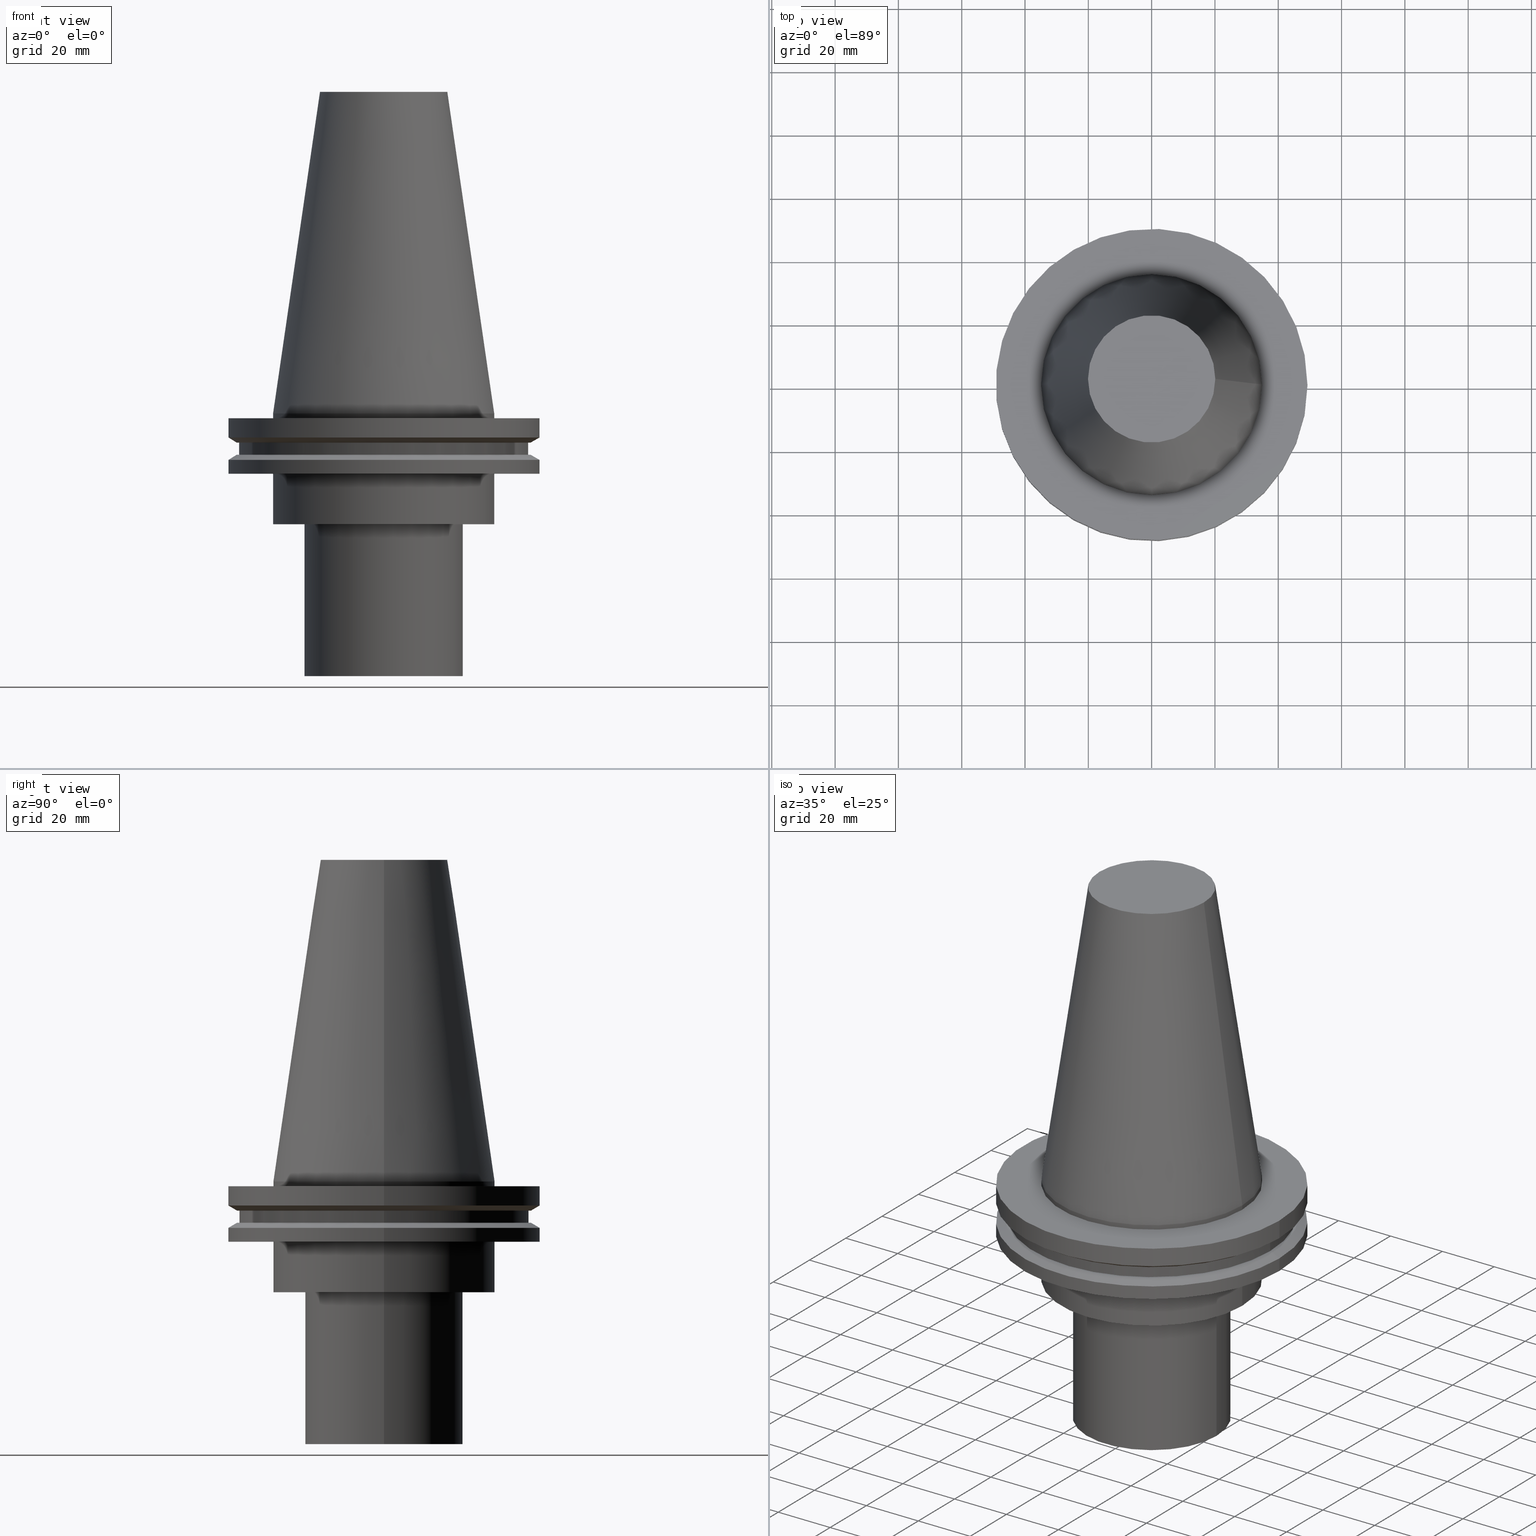
[diagram: canonical four-view strip — front | top / right | iso, engineering-drawing reading convention]
A machine part, canonical four-view strip (front | top / right | iso — engineering-drawing reading convention). The complete STEP part file that produces these views, byte-faithful:
ISO-10303-21;
HEADER;
FILE_DESCRIPTION (( 'STEP AP203' ),
    '1' );
FILE_NAME ('11.326.652.stp',
    '2022-03-09T14:51:39',
    ( '' ),
    ( '' ),
    'SwSTEP 2.0',
    'SolidWorks 2021',
    '' );
FILE_SCHEMA (( 'CONFIG_CONTROL_DESIGN' ));
ENDSEC;

DATA;
#1 = ORIENTED_EDGE ( 'NONE', *, *, #267, .F. ) ;
#2 = FACE_OUTER_BOUND ( 'NONE', #100, .T. ) ;
#3 = ORIENTED_EDGE ( 'NONE', *, *, #282, .T. ) ;
#4 =( LENGTH_UNIT ( ) NAMED_UNIT ( * ) SI_UNIT ( .MILLI., .METRE. ) );
#5 = FACE_OUTER_BOUND ( 'NONE', #336, .T. ) ;
#6 = AXIS2_PLACEMENT_3D ( 'NONE', #228, #347, #271 ) ;
#7 = ADVANCED_BREP_SHAPE_REPRESENTATION ( '11.326.652', ( #21, #395 ), #27 ) ;
#8 = EDGE_CURVE ( 'NONE', #365, #365, #269, .T. ) ;
#9 = CARTESIAN_POINT ( 'NONE',  ( 0.000000000000000000, 34.92499999999999716, -35.00000000000000000 ) ) ;
#10 = CARTESIAN_POINT ( 'NONE',  ( 0.000000000000000000, 0.000000000000000000, -82.99999999999995737 ) ) ;
#11 = APPLICATION_PROTOCOL_DEFINITION ( 'international standard', 'config_control_design', 1994, #262 ) ;
#12 = DATE_AND_TIME ( #283, #355 ) ;
#13 = AXIS2_PLACEMENT_3D ( 'NONE', #212, #338, #280 ) ;
#14 = DIRECTION ( 'NONE',  ( 0.000000000000000000, 0.000000000000000000, -1.000000000000000000 ) ) ;
#15 = APPROVAL_ROLE ( '' ) ;
#16 = CARTESIAN_POINT ( 'NONE',  ( 0.000000000000000000, 49.21499999999999631, -1.499999999999992895 ) ) ;
#17 = APPROVAL_DATE_TIME ( #127, #211 ) ;
#18 = AXIS2_PLACEMENT_3D ( 'NONE', #323, #24, #356 ) ;
#19 = EDGE_CURVE ( 'NONE', #390, #390, #351, .T. ) ;
#20 = PERSON_AND_ORGANIZATION ( #385, #217 ) ;
#21 = MANIFOLD_SOLID_BREP ( 'CKB', #214 ) ;
#22 = COORDINATED_UNIVERSAL_TIME_OFFSET ( 6, 0, .BEHIND. ) ;
#23 = ADVANCED_FACE ( 'NONE', ( #243, #178 ), #364, .T. ) ;
#24 = DIRECTION ( 'NONE',  ( -0.000000000000000000, -0.000000000000000000, 1.000000000000000000 ) ) ;
#25 = EDGE_LOOP ( 'NONE', ( #142 ) ) ;
#26 = ORIENTED_EDGE ( 'NONE', *, *, #150, .F. ) ;
#27 =( GEOMETRIC_REPRESENTATION_CONTEXT ( 3 ) GLOBAL_UNCERTAINTY_ASSIGNED_CONTEXT ( ( #329 ) ) GLOBAL_UNIT_ASSIGNED_CONTEXT ( ( #4, #370, #89 ) ) REPRESENTATION_CONTEXT ( 'NONE', 'WORKASPACE' ) );
#28 = FACE_OUTER_BOUND ( 'NONE', #55, .T. ) ;
#29 = EDGE_LOOP ( 'NONE', ( #240 ) ) ;
#30 = ADVANCED_FACE ( 'NONE', ( #108, #5 ), #268, .T. ) ;
#31 = CARTESIAN_POINT ( 'NONE',  ( 49.21499999999998920, 0.000000000000000000, -19.04999999999999716 ) ) ;
#32 = ORIENTED_EDGE ( 'NONE', *, *, #298, .T. ) ;
#33 = COORDINATED_UNIVERSAL_TIME_OFFSET ( 6, 0, .BEHIND. ) ;
#34 = CARTESIAN_POINT ( 'NONE',  ( 0.000000000000000000, 0.000000000000000000, 101.5999999999999801 ) ) ;
#35 = VERTEX_POINT ( 'NONE', #149 ) ;
#36 = CARTESIAN_POINT ( 'NONE',  ( 0.000000000000000000, 0.000000000000000000, 0.000000000000000000 ) ) ;
#37 = CARTESIAN_POINT ( 'NONE',  ( 45.64500000000000313, 0.000000000000000000, -13.05499999999999794 ) ) ;
#38 = DIRECTION ( 'NONE',  ( 1.000000000000000000, 0.000000000000000000, 0.000000000000000000 ) ) ;
#39 = EDGE_CURVE ( 'NONE', #47, #47, #231, .T. ) ;
#40 = VERTEX_POINT ( 'NONE', #37 ) ;
#41 = FACE_OUTER_BOUND ( 'NONE', #113, .T. ) ;
#42 = COORDINATED_UNIVERSAL_TIME_OFFSET ( 6, 0, .BEHIND. ) ;
#43 = PRODUCT_DEFINITION ( 'UNKNOWN', '', #293, #175 ) ;
#44 = AXIS2_PLACEMENT_3D ( 'NONE', #168, #106, #172 ) ;
#45 = FACE_OUTER_BOUND ( 'NONE', #244, .T. ) ;
#46 = FACE_OUTER_BOUND ( 'NONE', #57, .T. ) ;
#47 = VERTEX_POINT ( 'NONE', #166 ) ;
#48 = AXIS2_PLACEMENT_3D ( 'NONE', #145, #83, #328 ) ;
#49 = CC_DESIGN_APPROVAL ( #320, ( #43 ) ) ;
#50 = CARTESIAN_POINT ( 'NONE',  ( 0.000000000000000000, 46.43919780457007818, -9.204999999999998295 ) ) ;
#51 = DIRECTION ( 'NONE',  ( 1.000000000000000000, 0.000000000000000000, 0.000000000000000000 ) ) ;
#52 = EDGE_LOOP ( 'NONE', ( #26 ) ) ;
#53 = CYLINDRICAL_SURFACE ( 'NONE', #140, 45.64500000000000313 ) ;
#54 = EDGE_LOOP ( 'NONE', ( #359 ) ) ;
#55 = EDGE_LOOP ( 'NONE', ( #86 ) ) ;
#56 = MECHANICAL_CONTEXT ( 'NONE', #262, 'mechanical' ) ;
#57 = EDGE_LOOP ( 'NONE', ( #299 ) ) ;
#58 = DIRECTION ( 'NONE',  ( 0.000000000000000000, 0.000000000000000000, 1.000000000000000000 ) ) ;
#59 = DIRECTION ( 'NONE',  ( 0.000000000000000000, 0.000000000000000000, -1.000000000000000000 ) ) ;
#60 = CIRCLE ( 'NONE', #270, 49.21499999999999631 ) ;
#61 = FACE_OUTER_BOUND ( 'NONE', #236, .T. ) ;
#62 = EDGE_CURVE ( 'NONE', #40, #40, #122, .T. ) ;
#63 = DIRECTION ( 'NONE',  ( 1.000000000000000000, 0.000000000000000000, 0.000000000000000000 ) ) ;
#64 = CARTESIAN_POINT ( 'NONE',  ( 25.00000000000000000, 0.000000000000000000, -82.99999999999995737 ) ) ;
#65 = DIRECTION ( 'NONE',  ( -0.000000000000000000, -0.000000000000000000, 1.000000000000000000 ) ) ;
#66 = CIRCLE ( 'NONE', #223, 49.21499999999998920 ) ;
#67 = PERSON_AND_ORGANIZATION_ROLE ( 'classification_officer' ) ;
#68 = AXIS2_PLACEMENT_3D ( 'NONE', #319, #345, #63 ) ;
#69 = DIRECTION ( 'NONE',  ( -1.000000000000000000, 0.000000000000000000, -0.000000000000000000 ) ) ;
#70 = ADVANCED_FACE ( 'NONE', ( #153, #317 ), #340, .F. ) ;
#71 = CALENDAR_DATE ( 2022, 9, 3 ) ;
#72 = DIRECTION ( 'NONE',  ( -0.000000000000000000, -0.000000000000000000, 1.000000000000000000 ) ) ;
#73 = EDGE_LOOP ( 'NONE', ( #115 ) ) ;
#74 = AXIS2_PLACEMENT_3D ( 'NONE', #16, #59, #222 ) ;
#75 = CYLINDRICAL_SURFACE ( 'NONE', #78, 49.21499999999999631 ) ;
#76 = CARTESIAN_POINT ( 'NONE',  ( 49.21499999999998920, 0.000000000000000000, -14.65761014474876944 ) ) ;
#77 = PLANE ( 'NONE',  #276 ) ;
#78 = AXIS2_PLACEMENT_3D ( 'NONE', #230, #384, #291 ) ;
#79 = DIRECTION ( 'NONE',  ( 1.000000000000000000, 0.000000000000000000, 0.000000000000000000 ) ) ;
#80 = CARTESIAN_POINT ( 'NONE',  ( 0.000000000000000000, 0.000000000000000000, 0.000000000000000000 ) ) ;
#81 = CC_DESIGN_PERSON_AND_ORGANIZATION_ASSIGNMENT ( #160, #349, ( #293 ) ) ;
#82 = EDGE_LOOP ( 'NONE', ( #348 ) ) ;
#83 = DIRECTION ( 'NONE',  ( -0.000000000000000000, -0.000000000000000000, 1.000000000000000000 ) ) ;
#84 = ORIENTED_EDGE ( 'NONE', *, *, #19, .T. ) ;
#85 = DIRECTION ( 'NONE',  ( 0.000000000000000000, 0.000000000000000000, -1.000000000000000000 ) ) ;
#86 = ORIENTED_EDGE ( 'NONE', *, *, #226, .F. ) ;
#87 = VERTEX_POINT ( 'NONE', #64 ) ;
#88 = EDGE_LOOP ( 'NONE', ( #84 ) ) ;
#89 =( NAMED_UNIT ( * ) SI_UNIT ( $, .STERADIAN. ) SOLID_ANGLE_UNIT ( ) );
#90 = FACE_OUTER_BOUND ( 'NONE', #105, .T. ) ;
#91 = PERSON_AND_ORGANIZATION_ROLE ( 'design_owner' ) ;
#92 = FACE_OUTER_BOUND ( 'NONE', #331, .T. ) ;
#93 = CARTESIAN_POINT ( 'NONE',  ( 46.43919780457007818, 0.000000000000000000, -9.204999999999991189 ) ) ;
#94 = DIRECTION ( 'NONE',  ( -0.000000000000000000, -0.000000000000000000, 1.000000000000000000 ) ) ;
#95 = CC_DESIGN_DATE_AND_TIME_ASSIGNMENT ( #12, #123, ( #43 ) ) ;
#96 = CARTESIAN_POINT ( 'NONE',  ( 0.000000000000000000, 0.000000000000000000, 0.000000000000000000 ) ) ;
#97 = CARTESIAN_POINT ( 'NONE',  ( 0.000000000000000000, 0.000000000000000000, -14.65761014474876944 ) ) ;
#98 = AXIS2_PLACEMENT_3D ( 'NONE', #118, #184, #311 ) ;
#99 = DIRECTION ( 'NONE',  ( 1.000000000000000000, 0.000000000000000000, 0.000000000000000000 ) ) ;
#100 = EDGE_LOOP ( 'NONE', ( #204 ) ) ;
#101 = CYLINDRICAL_SURFACE ( 'NONE', #6, 34.92499999999999005 ) ;
#102 = EDGE_LOOP ( 'NONE', ( #294 ) ) ;
#103 = AXIS2_PLACEMENT_3D ( 'NONE', #273, #265, #51 ) ;
#104 = LOCAL_TIME ( 8, 51, 39.00000000000000000, #42 ) ;
#105 = EDGE_LOOP ( 'NONE', ( #308 ) ) ;
#106 = DIRECTION ( 'NONE',  ( -0.000000000000000000, -0.000000000000000000, 1.000000000000000000 ) ) ;
#107 = EDGE_LOOP ( 'NONE', ( #369 ) ) ;
#108 = FACE_OUTER_BOUND ( 'NONE', #171, .T. ) ;
#109 = EDGE_LOOP ( 'NONE', ( #233 ) ) ;
#110 = FACE_OUTER_BOUND ( 'NONE', #29, .T. ) ;
#111 = EDGE_LOOP ( 'NONE', ( #393 ) ) ;
#112 = DIRECTION ( 'NONE',  ( 1.000000000000000000, 0.000000000000000000, 0.000000000000000000 ) ) ;
#113 = EDGE_LOOP ( 'NONE', ( #237 ) ) ;
#114 = AXIS2_PLACEMENT_3D ( 'NONE', #207, #306, #275 ) ;
#115 = ORIENTED_EDGE ( 'NONE', *, *, #161, .T. ) ;
#116 = CARTESIAN_POINT ( 'NONE',  ( 34.92499999999999005, 0.000000000000000000, -1.499999999999987566 ) ) ;
#117 = DIRECTION ( 'NONE',  ( 1.000000000000000000, 0.000000000000000000, 0.000000000000000000 ) ) ;
#118 = CARTESIAN_POINT ( 'NONE',  ( 0.000000000000000000, 20.10819343178871321, 101.5999999999999943 ) ) ;
#119 = APPROVAL_STATUS ( 'not_yet_approved' ) ;
#120 = DIRECTION ( 'NONE',  ( 1.000000000000000000, 0.000000000000000000, 0.000000000000000000 ) ) ;
#121 = AXIS2_PLACEMENT_3D ( 'NONE', #144, #146, #79 ) ;
#122 = CIRCLE ( 'NONE', #68, 45.64500000000000313 ) ;
#123 = DATE_TIME_ROLE ( 'creation_date' ) ;
#124 = DIRECTION ( 'NONE',  ( -1.000000000000000000, 0.000000000000000000, 0.000000000000000000 ) ) ;
#125 = PERSON_AND_ORGANIZATION ( #385, #217 ) ;
#126 = PLANE ( 'NONE',  #98 ) ;
#127 = DATE_AND_TIME ( #71, #104 ) ;
#128 = CONICAL_SURFACE ( 'NONE', #238, 34.92499999999999005, 0.1448138465474119452 ) ;
#129 = DATE_TIME_ROLE ( 'classification_date' ) ;
#130 = DIRECTION ( 'NONE',  ( 1.000000000000000000, 0.000000000000000000, 0.000000000000000000 ) ) ;
#131 = APPROVAL_STATUS ( 'not_yet_approved' ) ;
#132 = ORIENTED_EDGE ( 'NONE', *, *, #39, .F. ) ;
#133 = ADVANCED_FACE ( 'NONE', ( #378 ), #126, .F. ) ;
#134 = EDGE_CURVE ( 'NONE', #343, #343, #353, .T. ) ;
#135 = CARTESIAN_POINT ( 'NONE',  ( 0.000000000000000000, 49.21499999999998920, -19.04999999999999716 ) ) ;
#136 = EDGE_LOOP ( 'NONE', ( #199 ) ) ;
#137 = CIRCLE ( 'NONE', #194, 34.92499999999999716 ) ;
#138 = FACE_BOUND ( 'NONE', #107, .T. ) ;
#139 = EDGE_LOOP ( 'NONE', ( #327 ) ) ;
#140 = AXIS2_PLACEMENT_3D ( 'NONE', #361, #239, #112 ) ;
#141 = LOCAL_TIME ( 8, 51, 39.00000000000000000, #22 ) ;
#142 = ORIENTED_EDGE ( 'NONE', *, *, #152, .F. ) ;
#143 = DIRECTION ( 'NONE',  ( 1.000000000000000000, 0.000000000000000000, 0.000000000000000000 ) ) ;
#144 = CARTESIAN_POINT ( 'NONE',  ( 0.000000000000000000, 0.000000000000000000, -9.204999999999991189 ) ) ;
#145 = CARTESIAN_POINT ( 'NONE',  ( 0.000000000000000000, 0.000000000000000000, -1.499999999999987566 ) ) ;
#146 = DIRECTION ( 'NONE',  ( -0.000000000000000000, -0.000000000000000000, 1.000000000000000000 ) ) ;
#147 = CARTESIAN_POINT ( 'NONE',  ( 34.92499999999999716, 0.000000000000000000, -19.04999999999999716 ) ) ;
#148 = FACE_BOUND ( 'NONE', #209, .T. ) ;
#149 = CARTESIAN_POINT ( 'NONE',  ( 20.10819343178871321, 0.000000000000000000, 101.5999999999999801 ) ) ;
#150 = EDGE_CURVE ( 'NONE', #35, #35, #297, .T. ) ;
#151 = PLANE ( 'NONE',  #259 ) ;
#152 = EDGE_CURVE ( 'NONE', #341, #341, #215, .T. ) ;
#153 = FACE_BOUND ( 'NONE', #54, .T. ) ;
#154 = COORDINATED_UNIVERSAL_TIME_OFFSET ( 6, 0, .BEHIND. ) ;
#155 = FACE_OUTER_BOUND ( 'NONE', #88, .T. ) ;
#156 = CIRCLE ( 'NONE', #196, 25.00000000000000000 ) ;
#157 = ADVANCED_FACE ( 'NONE', ( #148, #41 ), #159, .F. ) ;
#158 = APPROVAL_STATUS ( 'not_yet_approved' ) ;
#159 = PLANE ( 'NONE',  #74 ) ;
#160 = PERSON_AND_ORGANIZATION ( #385, #217 ) ;
#161 = EDGE_CURVE ( 'NONE', #335, #335, #137, .T. ) ;
#162 = PERSON_AND_ORGANIZATION ( #385, #217 ) ;
#163 = ADVANCED_FACE ( 'NONE', ( #371, #155 ), #360, .T. ) ;
#164 = PLANE ( 'NONE',  #367 ) ;
#165 = AXIS2_PLACEMENT_3D ( 'NONE', #96, #191, #278 ) ;
#166 = CARTESIAN_POINT ( 'NONE',  ( 46.43919780457007818, 0.000000000000000000, -13.05499999999999794 ) ) ;
#167 = LOCAL_TIME ( 8, 51, 39.00000000000000000, #33 ) ;
#168 = CARTESIAN_POINT ( 'NONE',  ( 0.000000000000000000, 0.000000000000000000, -9.204999999999991189 ) ) ;
#169 = CARTESIAN_POINT ( 'NONE',  ( 0.000000000000000000, 0.000000000000000000, 101.5999999999999943 ) ) ;
#170 = DIRECTION ( 'NONE',  ( -1.000000000000000000, 0.000000000000000000, 0.000000000000000000 ) ) ;
#171 = EDGE_LOOP ( 'NONE', ( #394 ) ) ;
#172 = DIRECTION ( 'NONE',  ( 1.000000000000000000, 0.000000000000000000, 0.000000000000000000 ) ) ;
#173 = AXIS2_PLACEMENT_3D ( 'NONE', #97, #14, #124 ) ;
#174 = CC_DESIGN_APPROVAL ( #260, ( #190 ) ) ;
#175 = DESIGN_CONTEXT ( 'detailed design', #255, 'design' ) ;
#176 = ADVANCED_FACE ( 'NONE', ( #216, #90 ), #380, .T. ) ;
#177 = ORIENTED_EDGE ( 'NONE', *, *, #134, .F. ) ;
#178 = FACE_OUTER_BOUND ( 'NONE', #362, .T. ) ;
#179 = ORIENTED_EDGE ( 'NONE', *, *, #296, .T. ) ;
#180 = DIRECTION ( 'NONE',  ( 1.000000000000000000, 0.000000000000000000, 0.000000000000000000 ) ) ;
#181 = CIRCLE ( 'NONE', #189, 25.00000000000000000 ) ;
#182 = DIRECTION ( 'NONE',  ( -0.000000000000000000, -0.000000000000000000, 1.000000000000000000 ) ) ;
#183 = PERSON_AND_ORGANIZATION_ROLE ( 'creator' ) ;
#184 = DIRECTION ( 'NONE',  ( 0.000000000000000000, 0.000000000000000000, -1.000000000000000000 ) ) ;
#185 = PERSON_AND_ORGANIZATION ( #385, #217 ) ;
#186 = DIRECTION ( 'NONE',  ( -0.000000000000000000, -0.000000000000000000, 1.000000000000000000 ) ) ;
#187 = VERTEX_POINT ( 'NONE', #274 ) ;
#188 = DIRECTION ( 'NONE',  ( 0.000000000000000000, -0.000000000000000000, 1.000000000000000000 ) ) ;
#189 = AXIS2_PLACEMENT_3D ( 'NONE', #235, #72, #130 ) ;
#190 = SECURITY_CLASSIFICATION ( '', '', #322 ) ;
#191 = DIRECTION ( 'NONE',  ( -0.000000000000000000, -0.000000000000000000, 1.000000000000000000 ) ) ;
#192 = DATE_AND_TIME ( #290, #198 ) ;
#193 = ADVANCED_FACE ( 'NONE', ( #287, #61 ), #151, .F. ) ;
#194 = AXIS2_PLACEMENT_3D ( 'NONE', #253, #94, #38 ) ;
#195 = APPROVAL_ROLE ( '' ) ;
#196 = AXIS2_PLACEMENT_3D ( 'NONE', #10, #251, #374 ) ;
#197 = FACE_OUTER_BOUND ( 'NONE', #25, .T. ) ;
#198 = LOCAL_TIME ( 8, 51, 39.00000000000000000, #227 ) ;
#199 = ORIENTED_EDGE ( 'NONE', *, *, #282, .F. ) ;
#200 = DIRECTION ( 'NONE',  ( -0.000000000000000000, -0.000000000000000000, 1.000000000000000000 ) ) ;
#201 = ORIENTED_EDGE ( 'NONE', *, *, #161, .F. ) ;
#202 = FACE_BOUND ( 'NONE', #301, .T. ) ;
#203 = ADVANCED_FACE ( 'NONE', ( #221 ), #249, .F. ) ;
#204 = ORIENTED_EDGE ( 'NONE', *, *, #62, .T. ) ;
#205 = CARTESIAN_POINT ( 'NONE',  ( 0.000000000000000000, 0.000000000000000000, -1.499999999999987566 ) ) ;
#206 = CIRCLE ( 'NONE', #18, 34.92499999999999716 ) ;
#207 = CARTESIAN_POINT ( 'NONE',  ( 0.000000000000000000, 0.000000000000000000, 101.5999999999999943 ) ) ;
#208 = VERTEX_POINT ( 'NONE', #116 ) ;
#209 = EDGE_LOOP ( 'NONE', ( #326 ) ) ;
#210 = EDGE_CURVE ( 'NONE', #87, #87, #156, .T. ) ;
#211 = APPROVAL ( #131, 'UNSPECIFIED' ) ;
#212 = CARTESIAN_POINT ( 'NONE',  ( 0.000000000000000000, 25.00000000000000000, -82.99999999999995737 ) ) ;
#213 = PERSON_AND_ORGANIZATION ( #385, #217 ) ;
#214 = CLOSED_SHELL ( 'NONE', ( #304, #133, #193, #23, #232, #30, #163, #70, #387, #315, #354, #220, #157, #289, #176, #203 ) ) ;
#215 = CIRCLE ( 'NONE', #285, 46.43919780457007818 ) ;
#216 = FACE_OUTER_BOUND ( 'NONE', #136, .T. ) ;
#217 = ORGANIZATION ( 'UNSPECIFIED', 'UNSPECIFIED', '' ) ;
#218 = CARTESIAN_POINT ( 'NONE',  ( 34.92499999999999716, 0.000000000000000000, -35.00000000000000000 ) ) ;
#219 = CARTESIAN_POINT ( 'NONE',  ( 0.000000000000000000, 0.000000000000000000, -13.05499999999999794 ) ) ;
#220 = ADVANCED_FACE ( 'NONE', ( #92, #352 ), #75, .T. ) ;
#221 = FACE_OUTER_BOUND ( 'NONE', #111, .T. ) ;
#222 = DIRECTION ( 'NONE',  ( -1.000000000000000000, 0.000000000000000000, -0.000000000000000000 ) ) ;
#223 = AXIS2_PLACEMENT_3D ( 'NONE', #358, #200, #305 ) ;
#224 = APPROVAL_PERSON_ORGANIZATION ( #337, #320, #309 ) ;
#225 = APPROVAL_DATE_TIME ( #383, #260 ) ;
#226 = EDGE_CURVE ( 'NONE', #307, #307, #245, .T. ) ;
#227 = COORDINATED_UNIVERSAL_TIME_OFFSET ( 6, 0, .BEHIND. ) ;
#228 = CARTESIAN_POINT ( 'NONE',  ( 0.000000000000000000, 0.000000000000000000, 101.5999999999999943 ) ) ;
#229 = PERSON_AND_ORGANIZATION ( #385, #217 ) ;
#230 = CARTESIAN_POINT ( 'NONE',  ( 0.000000000000000000, 0.000000000000000000, 101.5999999999999943 ) ) ;
#231 = CIRCLE ( 'NONE', #264, 46.43919780457007818 ) ;
#232 = ADVANCED_FACE ( 'NONE', ( #46, #295 ), #164, .F. ) ;
#233 = ORIENTED_EDGE ( 'NONE', *, *, #39, .T. ) ;
#234 = DIRECTION ( 'NONE',  ( -0.000000000000000000, -0.000000000000000000, 1.000000000000000000 ) ) ;
#235 = CARTESIAN_POINT ( 'NONE',  ( 0.000000000000000000, 0.000000000000000000, -35.00000000000000000 ) ) ;
#236 = EDGE_LOOP ( 'NONE', ( #1 ) ) ;
#237 = ORIENTED_EDGE ( 'NONE', *, *, #372, .T. ) ;
#238 = AXIS2_PLACEMENT_3D ( 'NONE', #80, #85, #170 ) ;
#239 = DIRECTION ( 'NONE',  ( -0.000000000000000000, -0.000000000000000000, 1.000000000000000000 ) ) ;
#240 = ORIENTED_EDGE ( 'NONE', *, *, #134, .T. ) ;
#241 = FACE_OUTER_BOUND ( 'NONE', #139, .T. ) ;
#242 = CC_DESIGN_PERSON_AND_ORGANIZATION_ASSIGNMENT ( #162, #67, ( #190 ) ) ;
#243 = FACE_OUTER_BOUND ( 'NONE', #303, .T. ) ;
#244 = EDGE_LOOP ( 'NONE', ( #177 ) ) ;
#245 = CIRCLE ( 'NONE', #339, 49.21500000000000341 ) ;
#246 = EDGE_LOOP ( 'NONE', ( #32 ) ) ;
#247 = CC_DESIGN_PERSON_AND_ORGANIZATION_ASSIGNMENT ( #213, #183, ( #43 ) ) ;
#248 = CARTESIAN_POINT ( 'NONE',  ( 49.21500000000000341, 0.000000000000000000, -7.602389855251287187 ) ) ;
#249 = PLANE ( 'NONE',  #13 ) ;
#250 = DATE_AND_TIME ( #316, #167 ) ;
#251 = DIRECTION ( 'NONE',  ( -0.000000000000000000, -0.000000000000000000, 1.000000000000000000 ) ) ;
#252 = VERTEX_POINT ( 'NONE', #31 ) ;
#253 = CARTESIAN_POINT ( 'NONE',  ( 0.000000000000000000, 0.000000000000000000, -19.04999999999999716 ) ) ;
#254 = APPROVAL_PERSON_ORGANIZATION ( #125, #211, #15 ) ;
#255 = APPLICATION_CONTEXT ( 'configuration controlled 3d designs of mechanical parts and assemblies' ) ;
#256 = DIRECTION ( 'NONE',  ( 0.000000000000000000, 0.000000000000000000, -1.000000000000000000 ) ) ;
#257 = CALENDAR_DATE ( 2022, 9, 3 ) ;
#258 = CARTESIAN_POINT ( 'NONE',  ( 0.000000000000000000, 0.000000000000000000, -9.204999999999991189 ) ) ;
#259 = AXIS2_PLACEMENT_3D ( 'NONE', #9, #188, #117 ) ;
#260 = APPROVAL ( #158, 'UNSPECIFIED' ) ;
#261 = DIRECTION ( 'NONE',  ( 0.000000000000000000, -0.000000000000000000, 1.000000000000000000 ) ) ;
#262 = APPLICATION_CONTEXT ( 'configuration controlled 3d designs of mechanical parts and assemblies' ) ;
#263 = DIRECTION ( 'NONE',  ( 1.000000000000000000, 0.000000000000000000, 0.000000000000000000 ) ) ;
#264 = AXIS2_PLACEMENT_3D ( 'NONE', #219, #382, #344 ) ;
#265 = DIRECTION ( 'NONE',  ( -0.000000000000000000, -0.000000000000000000, 1.000000000000000000 ) ) ;
#266 = DIRECTION ( 'NONE',  ( 1.000000000000000000, 0.000000000000000000, 0.000000000000000000 ) ) ;
#267 = EDGE_CURVE ( 'NONE', #318, #318, #206, .T. ) ;
#268 = CYLINDRICAL_SURFACE ( 'NONE', #302, 49.21499999999998920 ) ;
#269 = CIRCLE ( 'NONE', #121, 45.64500000000000313 ) ;
#270 = AXIS2_PLACEMENT_3D ( 'NONE', #205, #234, #266 ) ;
#271 = DIRECTION ( 'NONE',  ( 1.000000000000000000, 0.000000000000000000, 0.000000000000000000 ) ) ;
#272 = ORIENTED_EDGE ( 'NONE', *, *, #267, .T. ) ;
#273 = CARTESIAN_POINT ( 'NONE',  ( 0.000000000000000000, 0.000000000000000000, -14.65761014474876944 ) ) ;
#274 = CARTESIAN_POINT ( 'NONE',  ( 25.00000000000000000, 0.000000000000000000, -35.00000000000000000 ) ) ;
#275 = DIRECTION ( 'NONE',  ( 1.000000000000000000, 0.000000000000000000, 0.000000000000000000 ) ) ;
#276 = AXIS2_PLACEMENT_3D ( 'NONE', #50, #300, #143 ) ;
#277 = CC_DESIGN_APPROVAL ( #211, ( #293 ) ) ;
#278 = DIRECTION ( 'NONE',  ( 1.000000000000000000, 0.000000000000000000, 0.000000000000000000 ) ) ;
#279 = CARTESIAN_POINT ( 'NONE',  ( 49.21499999999999631, 0.000000000000000000, -1.499999999999987566 ) ) ;
#280 = DIRECTION ( 'NONE',  ( 1.000000000000000000, 0.000000000000000000, 0.000000000000000000 ) ) ;
#281 = DIRECTION ( 'NONE',  ( 1.000000000000000000, 0.000000000000000000, 0.000000000000000000 ) ) ;
#282 = EDGE_CURVE ( 'NONE', #187, #187, #181, .T. ) ;
#283 = CALENDAR_DATE ( 2022, 9, 3 ) ;
#284 = PRODUCT_RELATED_PRODUCT_CATEGORY ( 'detail', '', ( #346 ) ) ;
#285 = AXIS2_PLACEMENT_3D ( 'NONE', #258, #342, #281 ) ;
#286 = DIRECTION ( 'NONE',  ( 1.000000000000000000, 0.000000000000000000, 0.000000000000000000 ) ) ;
#287 = FACE_BOUND ( 'NONE', #334, .T. ) ;
#288 = PERSON_AND_ORGANIZATION_ROLE ( 'design_supplier' ) ;
#289 = ADVANCED_FACE ( 'NONE', ( #45, #386 ), #101, .T. ) ;
#290 = CALENDAR_DATE ( 2022, 9, 3 ) ;
#291 = DIRECTION ( 'NONE',  ( 1.000000000000000000, 0.000000000000000000, 0.000000000000000000 ) ) ;
#292 = CONICAL_SURFACE ( 'NONE', #44, 46.43919780457007818, 1.047197551196575205 ) ;
#293 = PRODUCT_DEFINITION_FORMATION_WITH_SPECIFIED_SOURCE ( 'ANY', '', #346, .NOT_KNOWN. ) ;
#294 = ORIENTED_EDGE ( 'NONE', *, *, #226, .T. ) ;
#295 = FACE_BOUND ( 'NONE', #73, .T. ) ;
#296 = EDGE_CURVE ( 'NONE', #252, #252, #66, .T. ) ;
#297 = CIRCLE ( 'NONE', #376, 20.10819343178871321 ) ;
#298 = EDGE_CURVE ( 'NONE', #208, #208, #310, .T. ) ;
#299 = ORIENTED_EDGE ( 'NONE', *, *, #296, .F. ) ;
#300 = DIRECTION ( 'NONE',  ( 0.000000000000000000, -0.000000000000000000, 1.000000000000000000 ) ) ;
#301 = EDGE_LOOP ( 'NONE', ( #388 ) ) ;
#302 = AXIS2_PLACEMENT_3D ( 'NONE', #169, #182, #321 ) ;
#303 = EDGE_LOOP ( 'NONE', ( #201 ) ) ;
#304 = ADVANCED_FACE ( 'NONE', ( #363, #110 ), #128, .T. ) ;
#305 = DIRECTION ( 'NONE',  ( 1.000000000000000000, 0.000000000000000000, 0.000000000000000000 ) ) ;
#306 = DIRECTION ( 'NONE',  ( -0.000000000000000000, -0.000000000000000000, 1.000000000000000000 ) ) ;
#307 = VERTEX_POINT ( 'NONE', #248 ) ;
#308 = ORIENTED_EDGE ( 'NONE', *, *, #210, .T. ) ;
#309 = APPROVAL_ROLE ( '' ) ;
#310 = CIRCLE ( 'NONE', #48, 34.92499999999999005 ) ;
#311 = DIRECTION ( 'NONE',  ( -1.000000000000000000, 0.000000000000000000, -0.000000000000000000 ) ) ;
#312 = VERTEX_POINT ( 'NONE', #279 ) ;
#313 = CARTESIAN_POINT ( 'NONE',  ( 0.000000000000000000, 45.64500000000000313, -13.05499999999999794 ) ) ;
#314 = CC_DESIGN_PERSON_AND_ORGANIZATION_ASSIGNMENT ( #20, #288, ( #293 ) ) ;
#315 = ADVANCED_FACE ( 'NONE', ( #197, #202 ), #77, .F. ) ;
#316 = CALENDAR_DATE ( 2022, 9, 3 ) ;
#317 = FACE_OUTER_BOUND ( 'NONE', #109, .T. ) ;
#318 = VERTEX_POINT ( 'NONE', #218 ) ;
#319 = CARTESIAN_POINT ( 'NONE',  ( 0.000000000000000000, 0.000000000000000000, -13.05499999999999794 ) ) ;
#320 = APPROVAL ( #119, 'UNSPECIFIED' ) ;
#321 = DIRECTION ( 'NONE',  ( 1.000000000000000000, 0.000000000000000000, 0.000000000000000000 ) ) ;
#322 = SECURITY_CLASSIFICATION_LEVEL ( 'unclassified' ) ;
#323 = CARTESIAN_POINT ( 'NONE',  ( 0.000000000000000000, 0.000000000000000000, -35.00000000000000000 ) ) ;
#324 = DIRECTION ( 'NONE',  ( -0.000000000000000000, -0.000000000000000000, 1.000000000000000000 ) ) ;
#325 = AXIS2_PLACEMENT_3D ( 'NONE', #36, #65, #286 ) ;
#326 = ORIENTED_EDGE ( 'NONE', *, *, #298, .F. ) ;
#327 = ORIENTED_EDGE ( 'NONE', *, *, #8, .F. ) ;
#328 = DIRECTION ( 'NONE',  ( 1.000000000000000000, 0.000000000000000000, 0.000000000000000000 ) ) ;
#329 = UNCERTAINTY_MEASURE_WITH_UNIT (LENGTH_MEASURE( 1.000000000000000082E-05 ), #4, 'distance_accuracy_value', 'NONE');
#330 = PRODUCT_DEFINITION_SHAPE ( 'NONE', 'NONE',  #43 ) ;
#331 = EDGE_LOOP ( 'NONE', ( #366 ) ) ;
#332 = AXIS2_PLACEMENT_3D ( 'NONE', #313, #256, #69 ) ;
#333 = CARTESIAN_POINT ( 'NONE',  ( 45.64500000000000313, 0.000000000000000000, -9.204999999999991189 ) ) ;
#334 = EDGE_LOOP ( 'NONE', ( #3 ) ) ;
#335 = VERTEX_POINT ( 'NONE', #147 ) ;
#336 = EDGE_LOOP ( 'NONE', ( #179 ) ) ;
#337 = PERSON_AND_ORGANIZATION ( #385, #217 ) ;
#338 = DIRECTION ( 'NONE',  ( 0.000000000000000000, -0.000000000000000000, 1.000000000000000000 ) ) ;
#339 = AXIS2_PLACEMENT_3D ( 'NONE', #391, #324, #99 ) ;
#340 = PLANE ( 'NONE',  #332 ) ;
#341 = VERTEX_POINT ( 'NONE', #93 ) ;
#342 = DIRECTION ( 'NONE',  ( -0.000000000000000000, -0.000000000000000000, 1.000000000000000000 ) ) ;
#343 = VERTEX_POINT ( 'NONE', #379 ) ;
#344 = DIRECTION ( 'NONE',  ( 1.000000000000000000, 0.000000000000000000, 0.000000000000000000 ) ) ;
#345 = DIRECTION ( 'NONE',  ( -0.000000000000000000, -0.000000000000000000, 1.000000000000000000 ) ) ;
#346 = PRODUCT ( '11.326.652', '11.326.652', '', ( #56 ) ) ;
#347 = DIRECTION ( 'NONE',  ( -0.000000000000000000, -0.000000000000000000, 1.000000000000000000 ) ) ;
#348 = ORIENTED_EDGE ( 'NONE', *, *, #150, .T. ) ;
#349 = PERSON_AND_ORGANIZATION_ROLE ( 'creator' ) ;
#350 = CC_DESIGN_DATE_AND_TIME_ASSIGNMENT ( #192, #129, ( #190 ) ) ;
#351 = CIRCLE ( 'NONE', #103, 49.21499999999998920 ) ;
#352 = FACE_OUTER_BOUND ( 'NONE', #102, .T. ) ;
#353 = CIRCLE ( 'NONE', #325, 34.92499999999999005 ) ;
#354 = ADVANCED_FACE ( 'NONE', ( #28, #138 ), #292, .T. ) ;
#355 = LOCAL_TIME ( 8, 51, 39.00000000000000000, #154 ) ;
#356 = DIRECTION ( 'NONE',  ( 1.000000000000000000, 0.000000000000000000, 0.000000000000000000 ) ) ;
#357 = CC_DESIGN_PERSON_AND_ORGANIZATION_ASSIGNMENT ( #185, #91, ( #346 ) ) ;
#358 = CARTESIAN_POINT ( 'NONE',  ( 0.000000000000000000, 0.000000000000000000, -19.04999999999999716 ) ) ;
#359 = ORIENTED_EDGE ( 'NONE', *, *, #62, .F. ) ;
#360 = CONICAL_SURFACE ( 'NONE', #173, 49.21499999999998920, 1.047197551196554333 ) ;
#361 = CARTESIAN_POINT ( 'NONE',  ( 0.000000000000000000, 0.000000000000000000, 101.5999999999999943 ) ) ;
#362 = EDGE_LOOP ( 'NONE', ( #272 ) ) ;
#363 = FACE_BOUND ( 'NONE', #52, .T. ) ;
#364 = CYLINDRICAL_SURFACE ( 'NONE', #114, 34.92499999999999716 ) ;
#365 = VERTEX_POINT ( 'NONE', #333 ) ;
#366 = ORIENTED_EDGE ( 'NONE', *, *, #372, .F. ) ;
#367 = AXIS2_PLACEMENT_3D ( 'NONE', #135, #261, #263 ) ;
#368 = APPLICATION_PROTOCOL_DEFINITION ( 'international standard', 'config_control_design', 1994, #255 ) ;
#369 = ORIENTED_EDGE ( 'NONE', *, *, #152, .T. ) ;
#370 =( NAMED_UNIT ( * ) PLANE_ANGLE_UNIT ( ) SI_UNIT ( $, .RADIAN. ) );
#371 = FACE_BOUND ( 'NONE', #392, .T. ) ;
#372 = EDGE_CURVE ( 'NONE', #312, #312, #60, .T. ) ;
#373 = APPROVAL_DATE_TIME ( #250, #320 ) ;
#374 = DIRECTION ( 'NONE',  ( 1.000000000000000000, 0.000000000000000000, 0.000000000000000000 ) ) ;
#375 = CARTESIAN_POINT ( 'NONE',  ( 0.000000000000000000, 0.000000000000000000, 0.000000000000000000 ) ) ;
#376 = AXIS2_PLACEMENT_3D ( 'NONE', #34, #186, #120 ) ;
#377 = CC_DESIGN_SECURITY_CLASSIFICATION ( #190, ( #293 ) ) ;
#378 = FACE_OUTER_BOUND ( 'NONE', #82, .T. ) ;
#379 = CARTESIAN_POINT ( 'NONE',  ( 34.92499999999999005, 0.000000000000000000, 0.000000000000000000 ) ) ;
#380 = CYLINDRICAL_SURFACE ( 'NONE', #165, 25.00000000000000000 ) ;
#381 = SHAPE_DEFINITION_REPRESENTATION ( #330, #7 ) ;
#382 = DIRECTION ( 'NONE',  ( -0.000000000000000000, -0.000000000000000000, 1.000000000000000000 ) ) ;
#383 = DATE_AND_TIME ( #257, #141 ) ;
#384 = DIRECTION ( 'NONE',  ( -0.000000000000000000, -0.000000000000000000, 1.000000000000000000 ) ) ;
#385 = PERSON ( 'UNSPECIFIED', 'UNSPECIFIED', 'UNSPECIFIED', ('UNSPECIFIED'), ('UNSPECIFIED'), ('UNSPECIFIED') ) ;
#386 = FACE_OUTER_BOUND ( 'NONE', #246, .T. ) ;
#387 = ADVANCED_FACE ( 'NONE', ( #241, #2 ), #53, .T. ) ;
#388 = ORIENTED_EDGE ( 'NONE', *, *, #8, .T. ) ;
#389 = APPROVAL_PERSON_ORGANIZATION ( #229, #260, #195 ) ;
#390 = VERTEX_POINT ( 'NONE', #76 ) ;
#391 = CARTESIAN_POINT ( 'NONE',  ( 0.000000000000000000, 0.000000000000000000, -7.602389855251287187 ) ) ;
#392 = EDGE_LOOP ( 'NONE', ( #132 ) ) ;
#393 = ORIENTED_EDGE ( 'NONE', *, *, #210, .F. ) ;
#394 = ORIENTED_EDGE ( 'NONE', *, *, #19, .F. ) ;
#395 = AXIS2_PLACEMENT_3D ( 'NONE', #375, #58, #180 ) ;
ENDSEC;
END-ISO-10303-21;
